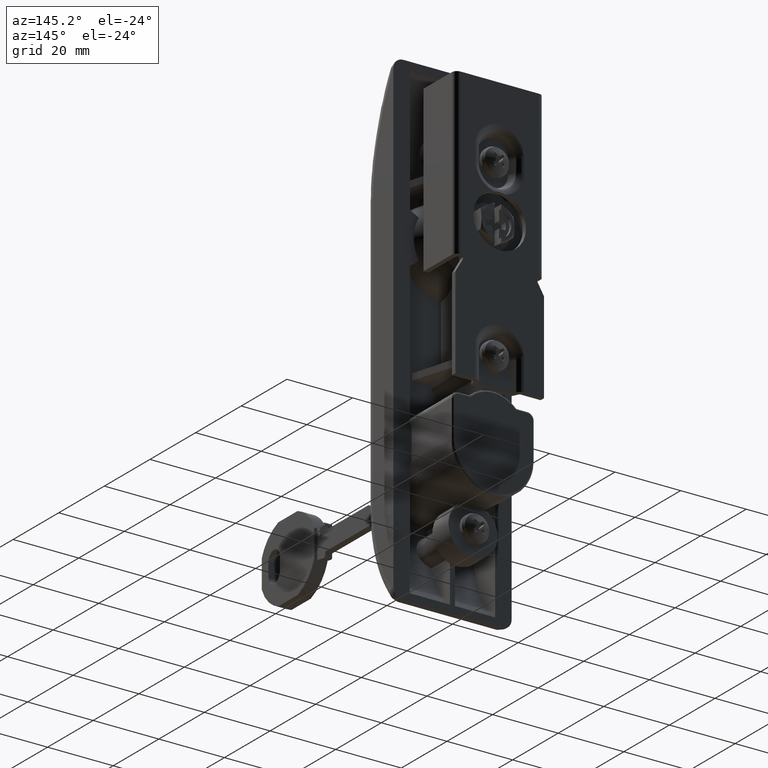
[diagram: clean part render]
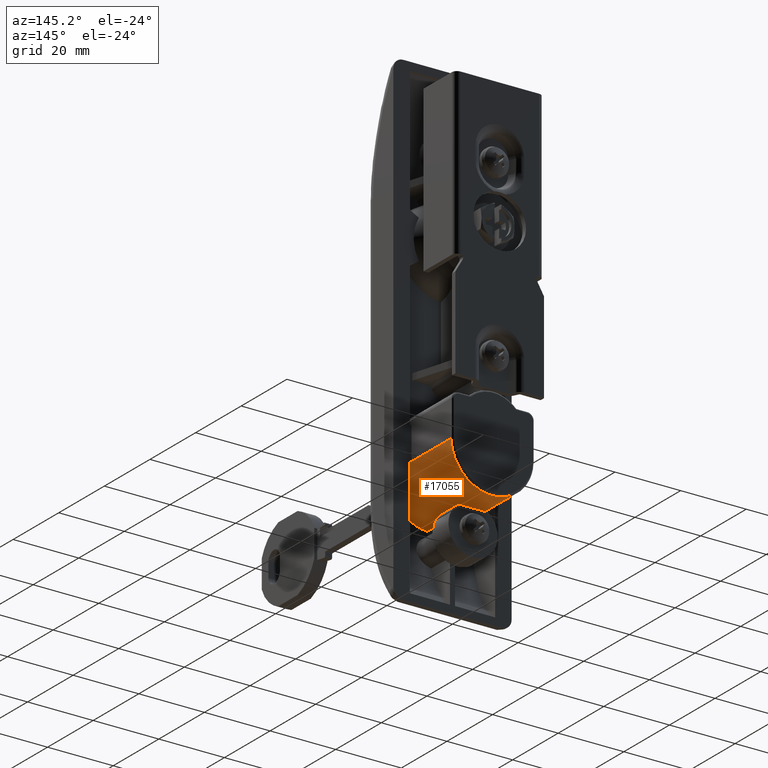
[diagram: same view with one face highlighted and labeled with its STEP entity id]
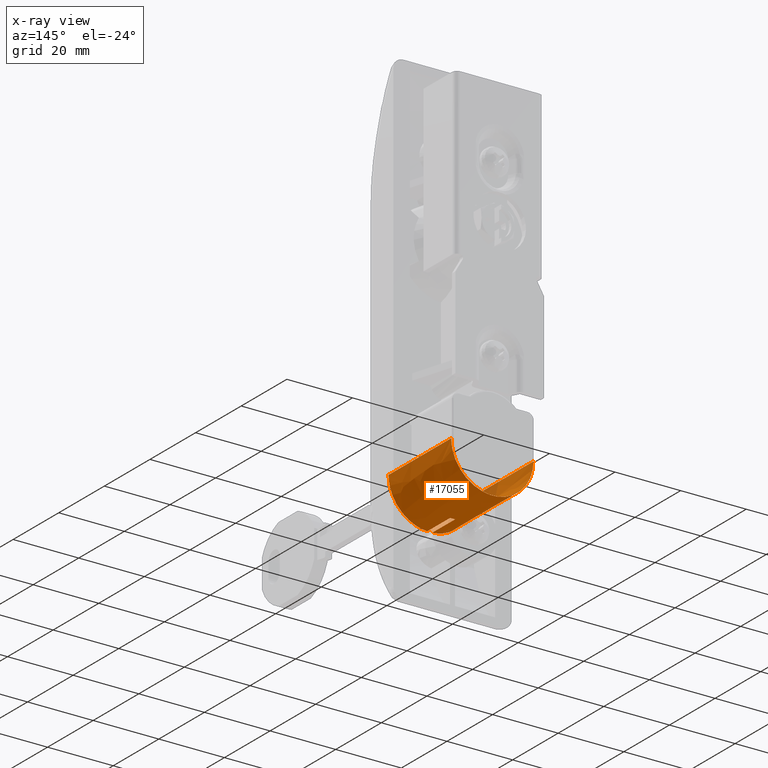
[diagram: x-ray of the same camera — body ghosted, the highlighted face saturated]
A machine part, auxiliary view. The second image highlights one B-rep face of the part: STEP entity #17055.
The next image is the same camera in x-ray: the body ghosted, the highlighted face saturated — about 2% of this face is hidden behind the body in this view.
In plain terms, the highlighted face is a freeform B-spline surface patch.
Its self-contained STEP definition (entity closure, byte-faithful):
#14919=CARTESIAN_POINT('',(-12.500000000000000,17.449999999999999,-89.649999999997306));
#14920=VERTEX_POINT('',#14919);
#15018=CARTESIAN_POINT('',(12.500000000000000,17.449999999999999,-89.649999999997306));
#15019=VERTEX_POINT('',#15018);
#15033=CARTESIAN_POINT('',(-12.500000000000000,17.449999999999999,-89.649999999997306));
#15034=CARTESIAN_POINT('',(-12.499999999999998,17.449999999999996,-102.149999999997320));
#15035=CARTESIAN_POINT('',(0.0,17.449999999999999,-102.149999999997310));
#15036=CARTESIAN_POINT('',(12.499999999999998,17.449999999999996,-102.149999999997320));
#15037=CARTESIAN_POINT('',(12.500000000000000,17.449999999999999,-89.649999999997306));
#15045=(BOUNDED_CURVE()B_SPLINE_CURVE(2,(#15033,#15034,#15035,#15036,#15037),.UNSPECIFIED.,.F.,.U.)B_SPLINE_CURVE_WITH_KNOTS((3,2,3),(0.0,0.500000000000000,1.0),.UNSPECIFIED.)CURVE()GEOMETRIC_REPRESENTATION_ITEM()RATIONAL_B_SPLINE_CURVE((1.0,0.707106781186547,1.0,0.707106781186547,1.0))REPRESENTATION_ITEM(''));
#15046=EDGE_CURVE('',#14920,#15019,#15045,.T.);
#16244=CARTESIAN_POINT('',(-0.750000000000028,7.021553E-014,-102.127479713464990));
#16245=VERTEX_POINT('',#16244);
#16246=CARTESIAN_POINT('',(-0.750000000000028,-10.028092230857141,-102.127479713464990));
#16247=VERTEX_POINT('',#16246);
#16248=CARTESIAN_POINT('',(-0.750000000000028,7.021553E-014,-102.127479713464990));
#16249=CARTESIAN_POINT('',(-0.750000000000028,-10.028092230857141,-102.127479713464990));
#16250=QUASI_UNIFORM_CURVE('',1,(#16248,#16249),.UNSPECIFIED.,.F.,.U.);
#16251=EDGE_CURVE('',#16245,#16247,#16250,.T.);
#16280=CARTESIAN_POINT('',(0.750000000000028,7.021553E-014,-102.127479713464990));
#16281=VERTEX_POINT('',#16280);
#16287=CARTESIAN_POINT('',(0.750000000000028,-10.028092230857141,-102.127479713464990));
#16288=VERTEX_POINT('',#16287);
#16289=CARTESIAN_POINT('',(0.750000000000028,7.021553E-014,-102.127479713464990));
#16290=CARTESIAN_POINT('',(0.750000000000028,-10.028092230857141,-102.127479713464990));
#16291=QUASI_UNIFORM_CURVE('',1,(#16289,#16290),.UNSPECIFIED.,.F.,.U.);
#16292=EDGE_CURVE('',#16281,#16288,#16291,.T.);
#16317=CARTESIAN_POINT('',(-0.750000000000031,1.110223E-013,-102.127479713465110));
#16318=CARTESIAN_POINT('',(-3.035766E-015,1.110223E-013,-102.172560932823230));
#16319=CARTESIAN_POINT('',(0.750000000000028,1.110223E-013,-102.127479713465110));
#16327=(BOUNDED_CURVE()B_SPLINE_CURVE(2,(#16317,#16318,#16319),.UNSPECIFIED.,.F.,.U.)CURVE()GEOMETRIC_REPRESENTATION_ITEM()QUASI_UNIFORM_CURVE()RATIONAL_B_SPLINE_CURVE((1.0,0.998198377077422,1.0))REPRESENTATION_ITEM(''));
#16328=EDGE_CURVE('',#16245,#16281,#16327,.T.);
#16695=CARTESIAN_POINT('',(12.500000000000000,0.0,-89.649999999997306));
#16696=VERTEX_POINT('',#16695);
#16697=CARTESIAN_POINT('',(12.500000000000000,-10.050000000000001,-89.649999999997306));
#16698=VERTEX_POINT('',#16697);
#16699=CARTESIAN_POINT('',(12.500000000000000,0.0,-89.649999999997306));
#16700=CARTESIAN_POINT('',(12.500000000000000,-10.050000000000001,-89.649999999997306));
#16701=QUASI_UNIFORM_CURVE('',1,(#16699,#16700),.UNSPECIFIED.,.F.,.U.);
#16702=EDGE_CURVE('',#16696,#16698,#16701,.T.);
#16731=CARTESIAN_POINT('',(-12.500000000000000,-10.050000000000001,-89.649999999997306));
#16732=VERTEX_POINT('',#16731);
#16733=CARTESIAN_POINT('',(-12.500000000000000,0.0,-89.649999999997306));
#16734=VERTEX_POINT('',#16733);
#16735=CARTESIAN_POINT('',(-12.500000000000000,-10.050000000000001,-89.649999999997306));
#16736=CARTESIAN_POINT('',(-12.500000000000000,0.0,-89.649999999997306));
#16737=QUASI_UNIFORM_CURVE('',1,(#16735,#16736),.UNSPECIFIED.,.F.,.U.);
#16738=EDGE_CURVE('',#16732,#16734,#16737,.T.);
#16952=CARTESIAN_POINT('',(12.500000000000000,17.449999999999999,-89.649999999997306));
#16953=CARTESIAN_POINT('',(12.500000000000000,0.0,-89.649999999997306));
#16954=QUASI_UNIFORM_CURVE('',1,(#16952,#16953),.UNSPECIFIED.,.F.,.U.);
#16955=EDGE_CURVE('',#15019,#16696,#16954,.T.);
#16973=CARTESIAN_POINT('',(12.491920186379589,18.137499999999999,-89.200633716079565));
#16974=CARTESIAN_POINT('',(12.491920186379589,-10.754687500000131,-89.200633716079565));
#16975=CARTESIAN_POINT('',(12.961334330556060,18.137500000000003,-102.249863783557300));
#16976=CARTESIAN_POINT('',(12.961334330556060,-10.754687500000127,-102.249863783557300));
#16977=CARTESIAN_POINT('',(-0.095951318759688,18.137499999999999,-102.149631728349500));
#16978=CARTESIAN_POINT('',(-0.095951318759688,-10.754687500000131,-102.149631728349500));
#16979=CARTESIAN_POINT('',(-13.153236968075436,18.137500000000003,-102.049399673141620));
#16980=CARTESIAN_POINT('',(-13.153236968075436,-10.754687500000127,-102.049399673141620));
#16981=CARTESIAN_POINT('',(-12.483549510897189,18.137499999999999,-89.008913727348954));
#16982=CARTESIAN_POINT('',(-12.483549510897189,-10.754687500000131,-89.008913727348954));
#16990=(BOUNDED_SURFACE()B_SPLINE_SURFACE(1,2,((#16973,#16975,#16977,#16979,#16981),(#16974,#16976,#16978,#16980,#16982)),.UNSPECIFIED.,.F.,.F.,.U.)B_SPLINE_SURFACE_WITH_KNOTS((2,2),(3,2,3),(0.0,28.892187500000130),(0.0,21.352597888335119,42.705195776670230),.UNSPECIFIED.)GEOMETRIC_REPRESENTATION_ITEM()RATIONAL_B_SPLINE_SURFACE(((1.0,0.691513055782269,1.0,0.691513055782269,1.0),(1.0,0.691513055782269,1.0,0.691513055782269,1.0)))REPRESENTATION_ITEM('')SURFACE());
#16991=CARTESIAN_POINT('',(-12.500000000000000,17.449999999999999,-89.649999999997306));
#16992=CARTESIAN_POINT('',(-12.500000000000000,0.0,-89.649999999997306));
#16993=QUASI_UNIFORM_CURVE('',1,(#16991,#16992),.UNSPECIFIED.,.F.,.U.);
#16994=EDGE_CURVE('',#14920,#16734,#16993,.T.);
#16995=ORIENTED_EDGE('',*,*,#16994,.F.);
#16996=ORIENTED_EDGE('',*,*,#15046,.T.);
#16997=ORIENTED_EDGE('',*,*,#16955,.T.);
#16998=ORIENTED_EDGE('',*,*,#16702,.T.);
#16999=CARTESIAN_POINT('',(4.243515347807595,-10.050000000000001,-101.407660374958000));
#17000=VERTEX_POINT('',#16999);
#17001=CARTESIAN_POINT('',(4.243515347807604,-10.050000000000120,-101.407660374958000));
#17002=CARTESIAN_POINT('',(12.500000000000005,-10.050000000000120,-98.427771670643097));
#17003=CARTESIAN_POINT('',(12.500000000000000,-10.050000000000120,-89.649999999997306));
#17011=(BOUNDED_CURVE()B_SPLINE_CURVE(2,(#17001,#17002,#17003),.UNSPECIFIED.,.F.,.U.)CURVE()GEOMETRIC_REPRESENTATION_ITEM()QUASI_UNIFORM_CURVE()RATIONAL_B_SPLINE_CURVE((1.0,0.818376816577977,1.0))REPRESENTATION_ITEM(''));
#17012=EDGE_CURVE('',#17000,#16698,#17011,.T.);
#17013=ORIENTED_EDGE('',*,*,#17012,.F.);
#17014=CARTESIAN_POINT('',(4.243515347807595,-10.050000000000001,-101.407660374958000));
#17015=CARTESIAN_POINT('',(3.557899280628647,-10.044562543764460,-101.655109460149600));
#17016=CARTESIAN_POINT('',(2.860940378661741,-10.038502658063580,-101.839396035286200));
#17017=CARTESIAN_POINT('',(1.799182371008174,-10.031998150780410,-102.025056835612110));
#17018=CARTESIAN_POINT('',(1.442527157685370,-10.030235995760730,-102.071726121501100));
#17019=CARTESIAN_POINT('',(0.972331675679799,-10.028668718551840,-102.112621464537990));
#17020=CARTESIAN_POINT('',(0.861298831948517,-10.028352578330409,-102.120790194692900));
#17021=CARTESIAN_POINT('',(0.750000000000028,-10.028092230857141,-102.127479713464990));
#17022=B_SPLINE_CURVE_WITH_KNOTS('',3,(#17014,#17015,#17016,#17017,#17018,#17019,#17020,#17021),.UNSPECIFIED.,.F.,.U.,(4,2,2,4),(0.0,0.250000000000000,0.375000000000000,0.413522967156686),.UNSPECIFIED.);
#17023=EDGE_CURVE('',#17000,#16288,#17022,.T.);
#17024=ORIENTED_EDGE('',*,*,#17023,.T.);
#17025=ORIENTED_EDGE('',*,*,#16292,.F.);
#17026=ORIENTED_EDGE('',*,*,#16328,.F.);
#17027=ORIENTED_EDGE('',*,*,#16251,.T.);
#17028=CARTESIAN_POINT('',(-4.243515347807595,-10.050000000000001,-101.407660374958000));
#17029=VERTEX_POINT('',#17028);
#17030=CARTESIAN_POINT('',(-0.750000000000028,-10.028092230857141,-102.127479713464990));
#17031=CARTESIAN_POINT('',(-1.222788767769380,-10.029210305982090,-102.099115528623400));
#17032=CARTESIAN_POINT('',(-1.691015132835533,-10.031321132799039,-102.043982239244800));
#17033=CARTESIAN_POINT('',(-2.861500494438187,-10.038501847588090,-101.839166711336400));
#17034=CARTESIAN_POINT('',(-3.557899648864663,-10.044559084961570,-101.655094037091100));
#17035=CARTESIAN_POINT('',(-4.243515347807595,-10.050000000000001,-101.407660374958000));
#17036=B_SPLINE_CURVE_WITH_KNOTS('',3,(#17030,#17031,#17032,#17033,#17034,#17035),.UNSPECIFIED.,.F.,.U.,(4,2,4),(0.585928614764990,0.750000000000000,1.0),.UNSPECIFIED.);
#17037=EDGE_CURVE('',#16247,#17029,#17036,.T.);
#17038=ORIENTED_EDGE('',*,*,#17037,.T.);
#17039=CARTESIAN_POINT('',(-12.500000000000000,-10.050000000000001,-89.649999999997306));
#17040=CARTESIAN_POINT('',(-12.500000000000004,-10.050000000000001,-98.427771670643111));
#17041=CARTESIAN_POINT('',(-4.243515347807611,-10.050000000000001,-101.407660374958000));
#17049=(BOUNDED_CURVE()B_SPLINE_CURVE(2,(#17039,#17040,#17041),.UNSPECIFIED.,.F.,.U.)CURVE()GEOMETRIC_REPRESENTATION_ITEM()QUASI_UNIFORM_CURVE()RATIONAL_B_SPLINE_CURVE((1.0,0.818376816577977,1.0))REPRESENTATION_ITEM(''));
#17050=EDGE_CURVE('',#16732,#17029,#17049,.T.);
#17051=ORIENTED_EDGE('',*,*,#17050,.F.);
#17052=ORIENTED_EDGE('',*,*,#16738,.T.);
#17053=EDGE_LOOP('',(#16995,#16996,#16997,#16998,#17013,#17024,#17025,#17026,#17027,#17038,#17051,#17052));
#17054=FACE_OUTER_BOUND('',#17053,.T.);
#17055=ADVANCED_FACE('',(#17054),#16990,.T.);